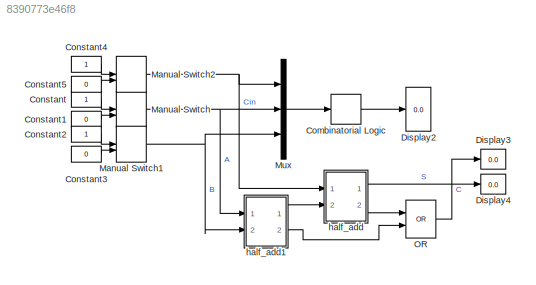
MODEL slx_8390773e46f8
KIND model
CONFIG AbsTol = auto
CONFIG EnableMultiTasking = off
CONFIG FixedStep = 1
CONFIG MaxStep = 1
CONFIG MinStep = auto
CONFIG RelTol = 1e-3
CONFIG SampleTimeConstraint = Unconstrained
CONFIG Solver = FixedStepAuto
CONFIG SolverName = FixedStepAuto
CONFIG StartTime = 0.0
CONFIG StopTime = inf
BLOCK [CombinatorialLogic] Combinatorial Logic
  TruthTable = [0 0; 0 1; 0 1; 1 0; 0 1; 1 0; 1 0; 1 1]
BLOCK [Constant] Constant
  OutDataTypeStr = boolean
BLOCK [Constant] Constant1
  OutDataTypeStr = boolean
  Value = 0
BLOCK [Constant] Constant2
  OutDataTypeStr = boolean
BLOCK [Constant] Constant3
  OutDataTypeStr = boolean
  Value = 0
BLOCK [Constant] Constant4
  OutDataTypeStr = boolean
BLOCK [Constant] Constant5
  OutDataTypeStr = boolean
  Value = 0
BLOCK [Display] Display2
  Decimation = 1
  Ports = [1]
BLOCK [Display] Display3
  Decimation = 1
  Ports = [1]
BLOCK [Display] Display4
  Decimation = 1
  Ports = [1]
BLOCK [ManualSwitch] Manual Switch
  CurrentSetting = 0
BLOCK [ManualSwitch] Manual Switch1
  CurrentSetting = 0
BLOCK [ManualSwitch] Manual Switch2
  CurrentSetting = 0
BLOCK [Mux] Mux
  DisplayOption = bar
  Inputs = 3
  Ports = [3, 1]
BLOCK [Logic] OR
  AllPortsSameDT = off
  Operator = OR
  OutDataTypeStr = boolean
  Ports = [2, 1]
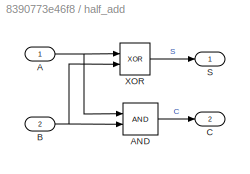
BLOCK [SubSystem] half_add
  Ports = [2, 2]
  RequestExecContextInheritance = off
BLOCK [Inport] half_add/A
  IconDisplay = Port number
BLOCK [Logic] half_add/AND
  AllPortsSameDT = off
  IconShape = distinctive
  OutDataTypeStr = boolean
  Ports = [2, 1]
BLOCK [Inport] half_add/B
  IconDisplay = Port number
  Port = 2
BLOCK [Outport] half_add/C
  IconDisplay = Port number
  Port = 2
BLOCK [Outport] half_add/S
  IconDisplay = Port number
BLOCK [Logic] half_add/XOR
  AllPortsSameDT = off
  IconShape = distinctive
  Operator = XOR
  OutDataTypeStr = boolean
  Ports = [2, 1]
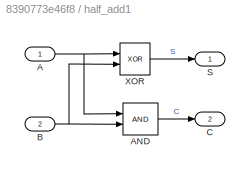
BLOCK [SubSystem] half_add1
  Ports = [2, 2]
  RequestExecContextInheritance = off
BLOCK [Inport] half_add1/A
  IconDisplay = Port number
BLOCK [Logic] half_add1/AND
  AllPortsSameDT = off
  IconShape = distinctive
  OutDataTypeStr = boolean
  Ports = [2, 1]
BLOCK [Inport] half_add1/B
  IconDisplay = Port number
  Port = 2
BLOCK [Outport] half_add1/C
  IconDisplay = Port number
  Port = 2
BLOCK [Outport] half_add1/S
  IconDisplay = Port number
BLOCK [Logic] half_add1/XOR
  AllPortsSameDT = off
  IconShape = distinctive
  Operator = XOR
  OutDataTypeStr = boolean
  Ports = [2, 1]
LINE Combinatorial Logic:1 -> Display2:1
LINE Constant1:1 -> Manual Switch:2
LINE Constant2:1 -> Manual Switch1:1
LINE Constant3:1 -> Manual Switch1:2
LINE Constant4:1 -> Manual Switch2:1
LINE Constant5:1 -> Manual Switch2:2
LINE Constant:1 -> Manual Switch:1
NET Manual Switch1:1 -> Mux:3, half_add1:2
NET Manual Switch2:1 -> Mux:1, half_add:1
NET Manual Switch:1 -> Mux:2, half_add1:1
LINE Mux:1 -> Combinatorial Logic:1
LINE OR:1 -> Display3:1
NET half_add/A:1 -> half_add/AND:1, half_add/XOR:1
LINE half_add/AND:1 -> half_add/C:1
NET half_add/B:1 -> half_add/AND:2, half_add/XOR:2
LINE half_add/XOR:1 -> half_add/S:1
NET half_add1/A:1 -> half_add1/AND:1, half_add1/XOR:1
LINE half_add1/AND:1 -> half_add1/C:1
NET half_add1/B:1 -> half_add1/AND:2, half_add1/XOR:2
LINE half_add1/XOR:1 -> half_add1/S:1
LINE half_add1:1 -> half_add:2
LINE half_add1:2 -> OR:2
LINE half_add:1 -> Display4:1
LINE half_add:2 -> OR:1
note: NET lines group one-source signal fan-out (src -> all destinations, sorted); 1:1 wires keep LINE
